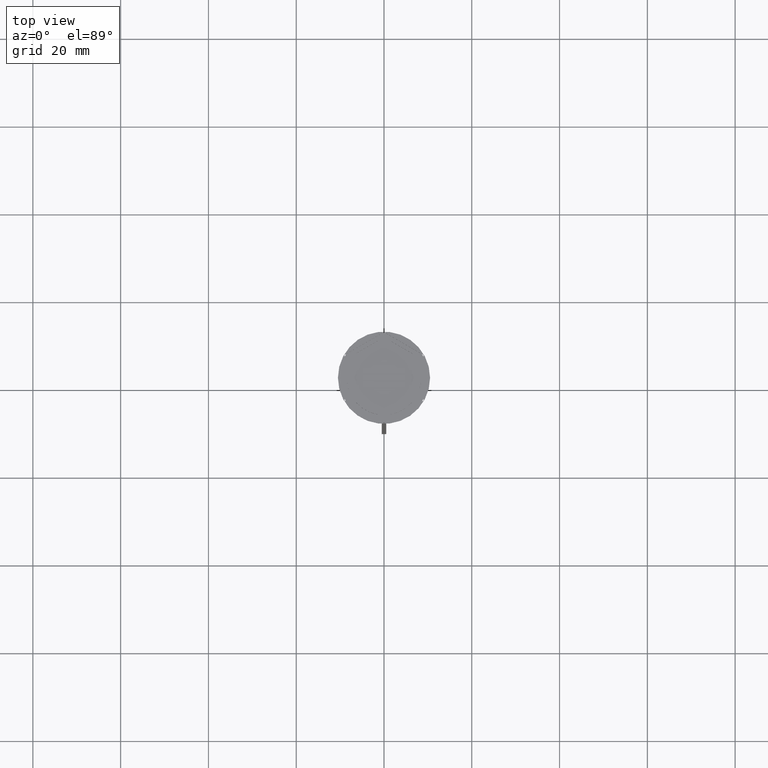
[diagram: clean part render]
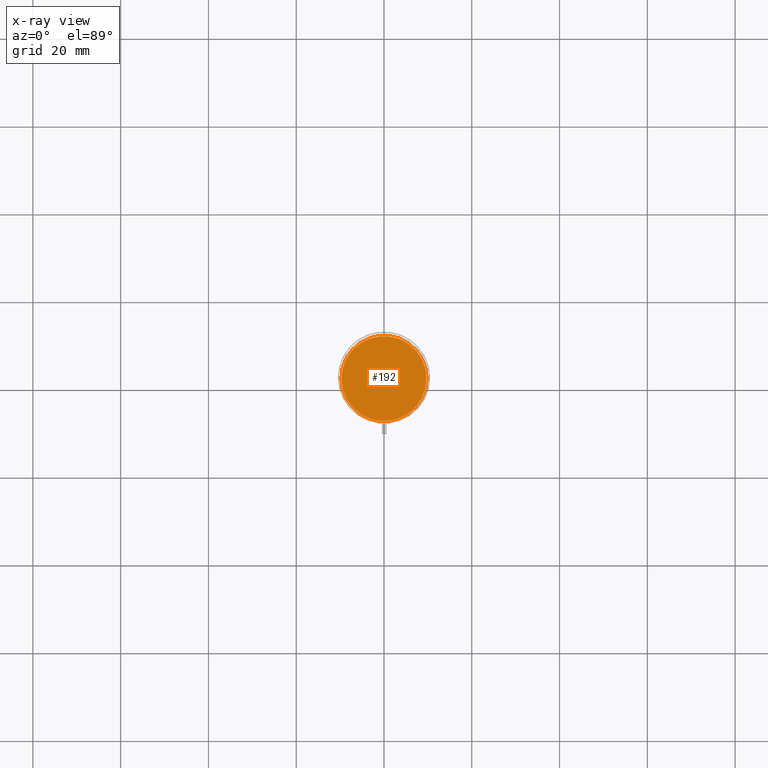
[diagram: x-ray — body ghosted, one internal face saturated and labeled with its STEP entity id]
A machine part, top view, then the same camera in x-ray: the body is ghosted and one INTERNAL B-rep face — a face not visible from any outside direction — is saturated and labeled: STEP entity #192.
In plain terms, the highlighted planar face has unit normal (0, 0, -1).
Its self-contained STEP definition (entity closure, byte-faithful):
#77 = DIRECTION ( 'NONE',  ( -0.000000000000000000, -0.000000000000000000, 1.000000000000000000 ) ) ;
#130 = AXIS2_PLACEMENT_3D ( 'NONE', #442, #77, #1730 ) ;
#192 = ADVANCED_FACE ( 'NONE', ( #1305 ), #920, .F. ) ;
#258 = VERTEX_POINT ( 'NONE', #2576 ) ;
#337 = EDGE_LOOP ( 'NONE', ( #922, #475 ) ) ;
#442 = CARTESIAN_POINT ( 'NONE',  ( 0.000000000000000000, 0.000000000000000000, -12.00000000000000000 ) ) ;
#475 = ORIENTED_EDGE ( 'NONE', *, *, #2270, .T. ) ;
#483 = CARTESIAN_POINT ( 'NONE',  ( 0.000000000000000000, 0.000000000000000000, -12.00000000000000000 ) ) ;
#510 = CARTESIAN_POINT ( 'NONE',  ( 9.700000000000002842, 1.206277097160143024E-15, -12.00000000000000000 ) ) ;
#628 = CIRCLE ( 'NONE', #929, 9.700000000000002842 ) ;
#673 = DIRECTION ( 'NONE',  ( 0.000000000000000000, 0.000000000000000000, -1.000000000000000000 ) ) ;
#920 = PLANE ( 'NONE',  #1301 ) ;
#922 = ORIENTED_EDGE ( 'NONE', *, *, #1104, .T. ) ;
#929 = AXIS2_PLACEMENT_3D ( 'NONE', #2086, #2522, #2310 ) ;
#1104 = EDGE_CURVE ( 'NONE', #258, #2416, #628, .T. ) ;
#1291 = CIRCLE ( 'NONE', #130, 9.700000000000002842 ) ;
#1301 = AXIS2_PLACEMENT_3D ( 'NONE', #483, #673, #1498 ) ;
#1305 = FACE_OUTER_BOUND ( 'NONE', #337, .T. ) ;
#1498 = DIRECTION ( 'NONE',  ( -1.000000000000000000, 0.000000000000000000, -0.000000000000000000 ) ) ;
#1730 = DIRECTION ( 'NONE',  ( -1.000000000000000000, 0.000000000000000000, 0.000000000000000000 ) ) ;
#2086 = CARTESIAN_POINT ( 'NONE',  ( 0.000000000000000000, 0.000000000000000000, -12.00000000000000000 ) ) ;
#2270 = EDGE_CURVE ( 'NONE', #2416, #258, #1291, .T. ) ;
#2310 = DIRECTION ( 'NONE',  ( -1.000000000000000000, 0.000000000000000000, 0.000000000000000000 ) ) ;
#2416 = VERTEX_POINT ( 'NONE', #510 ) ;
#2522 = DIRECTION ( 'NONE',  ( -0.000000000000000000, -0.000000000000000000, 1.000000000000000000 ) ) ;
#2576 = CARTESIAN_POINT ( 'NONE',  ( -9.700000000000002842, 0.000000000000000000, -12.00000000000000000 ) ) ;